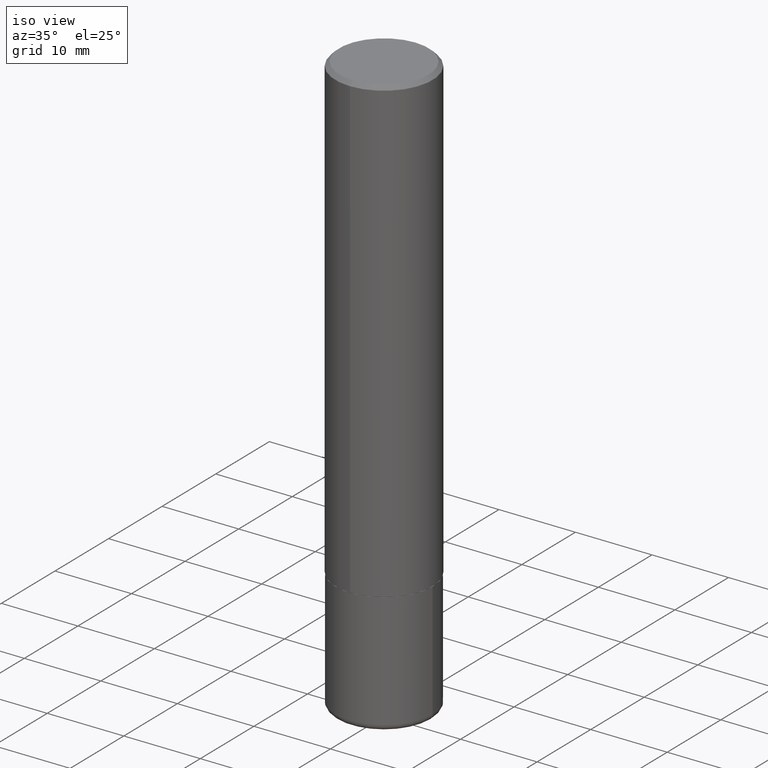
[diagram: clean part render]
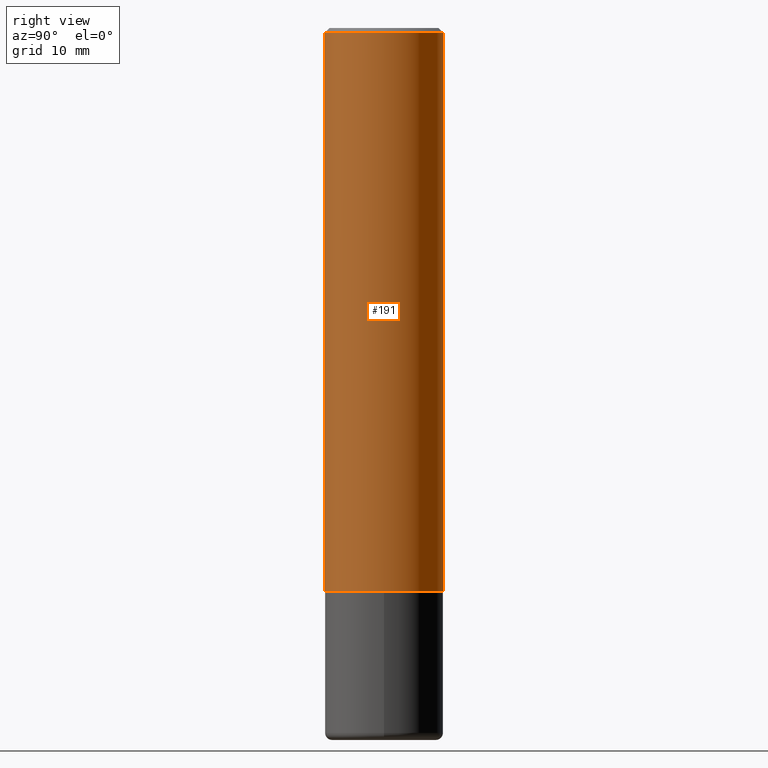
[diagram: tour spotlight — one face highlighted and labeled with its STEP entity id]
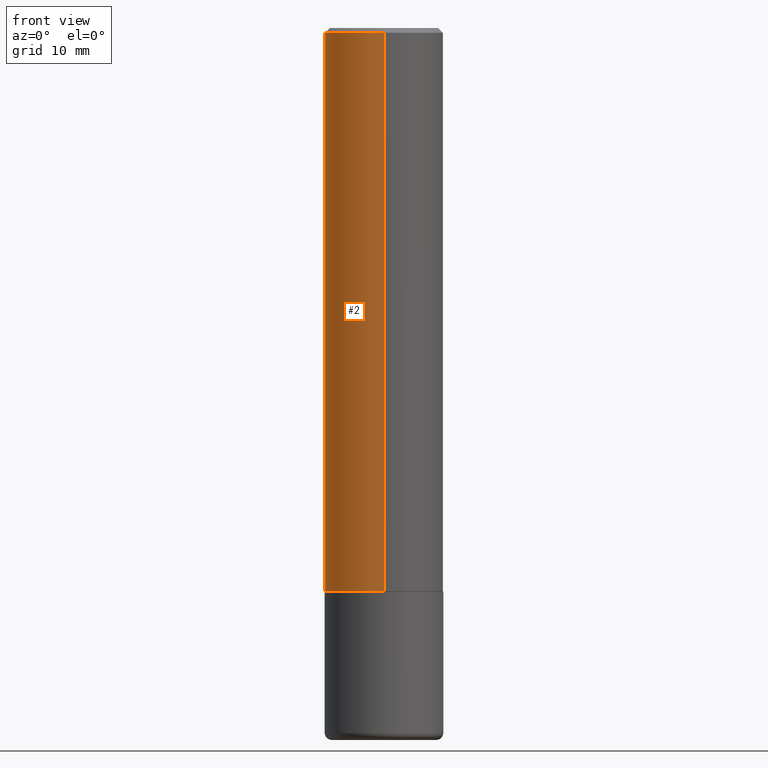
[diagram: tour spotlight — one face highlighted and labeled with its STEP entity id]
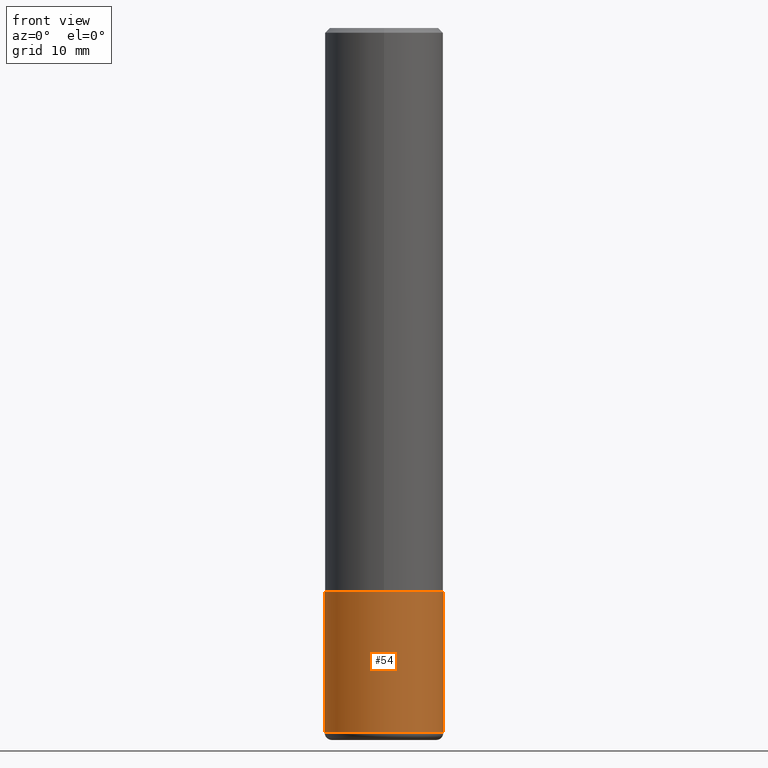
[diagram: tour spotlight — one face highlighted and labeled with its STEP entity id]
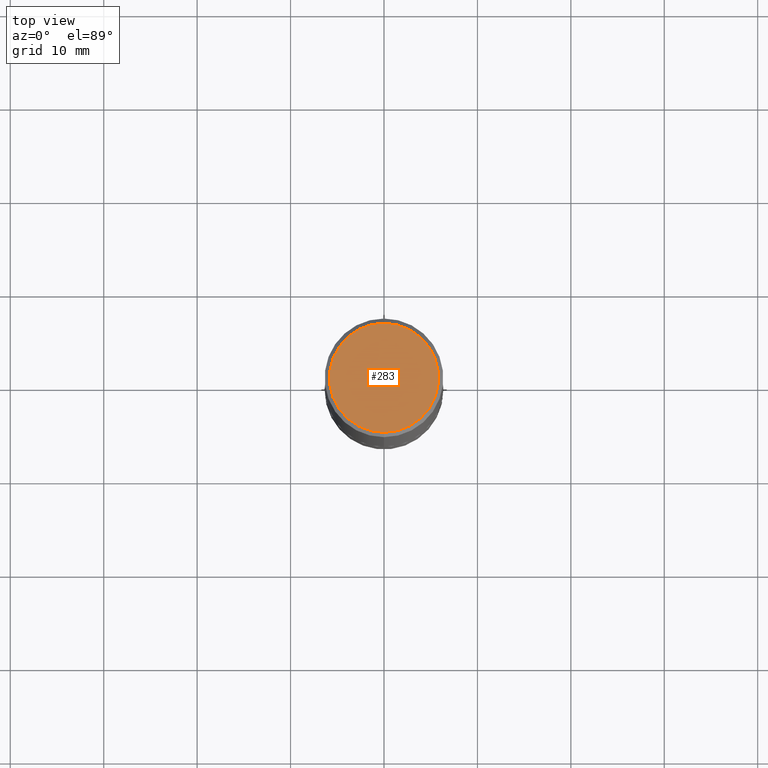
[diagram: tour spotlight — one face highlighted and labeled with its STEP entity id]
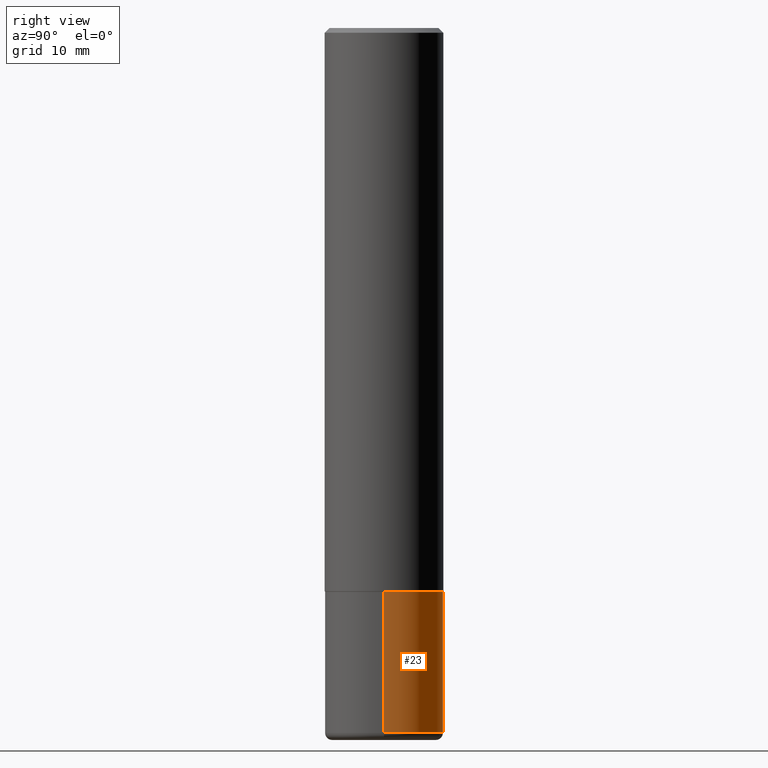
[diagram: tour spotlight — one face highlighted and labeled with its STEP entity id]
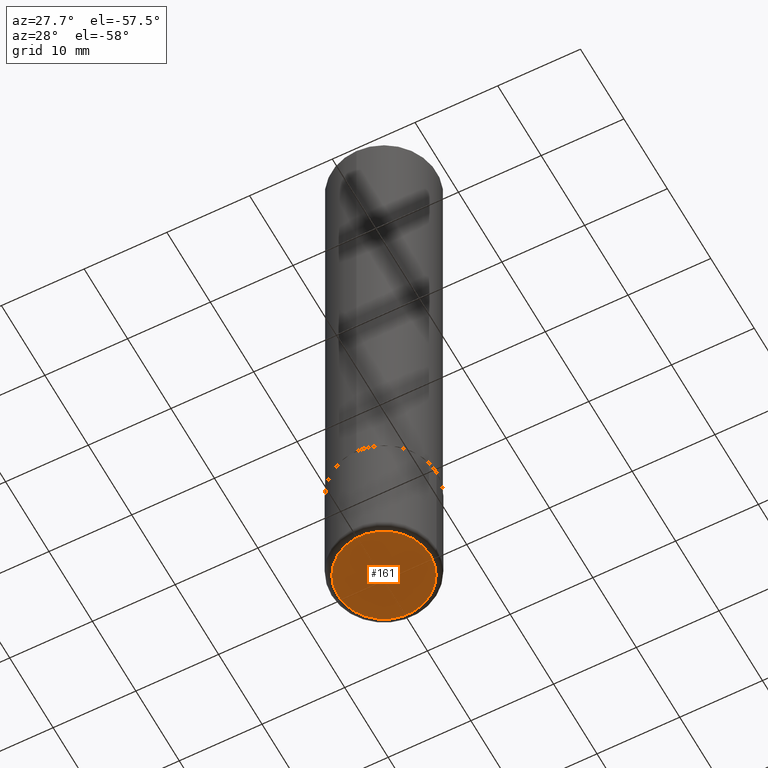
[diagram: tour spotlight — one face highlighted and labeled with its STEP entity id]
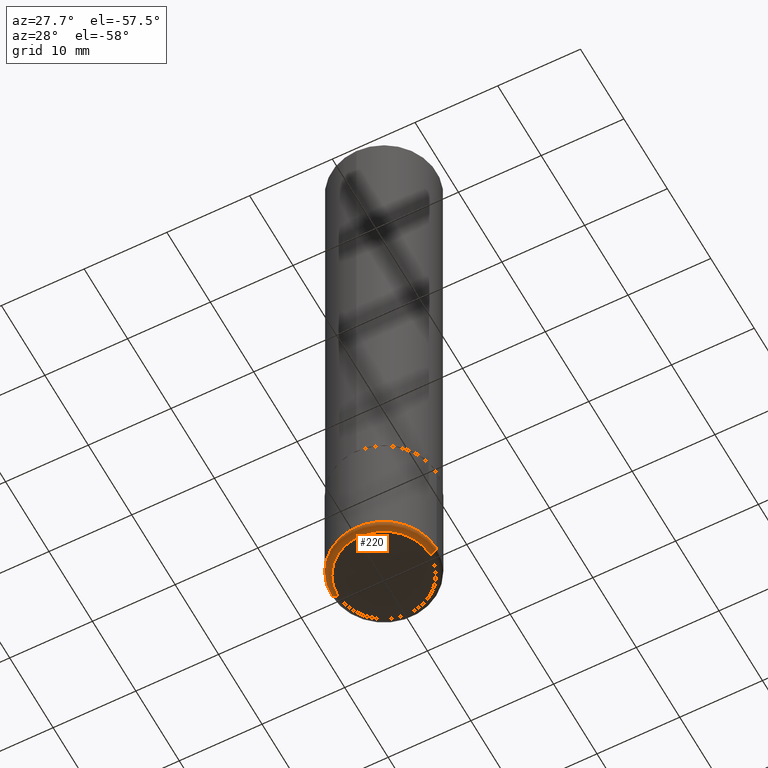
[diagram: tour spotlight — one face highlighted and labeled with its STEP entity id]
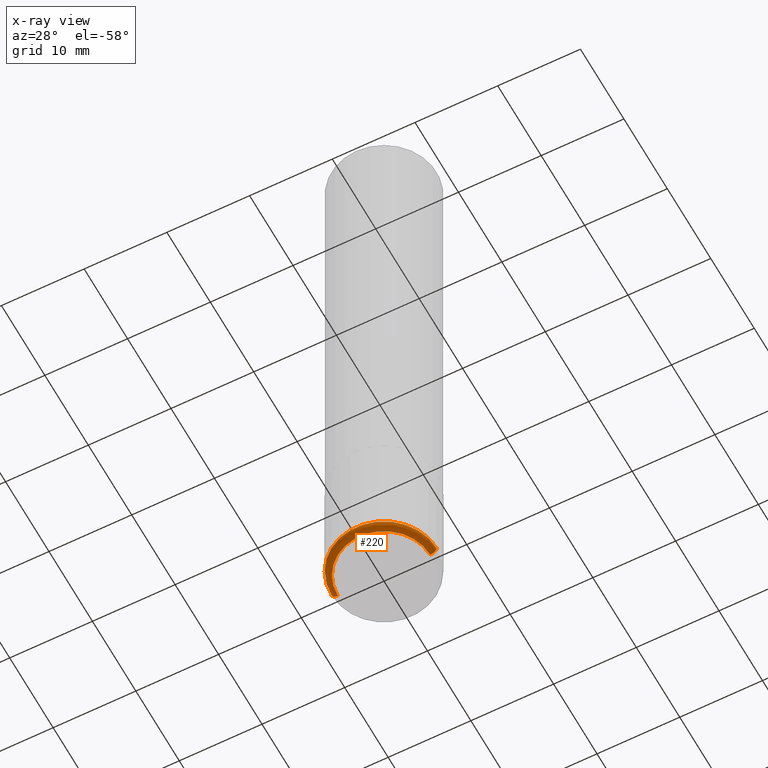
[diagram: x-ray of the same camera — body ghosted, this tour face saturated]
A machine part: a face-by-face anatomy tour. The part has 14 B-rep faces; the first image is the clean iso view, then the 7 largest visible faces are spotlighted one at a time (largest first), each with its STEP entity span.

Face 1 — right view, entity #191. In plain terms, the highlighted cylindrical surface (partial cylindrical patch) has radius 6.35 mm, axis along (-0, 0, 1).
Definition (entity closure, byte-faithful):
#4 = CARTESIAN_POINT ( 'NONE',  ( 4.890248901431403027E-31, -6.983948950949810725E-17, -0.02000000000000009409 ) ) ;
#17 = VECTOR ( 'NONE', #323, 39.37007874015748143 ) ;
#37 = DIRECTION ( 'NONE',  ( -2.445124450715689953E-29, 3.491974475474889339E-15, 1.000000000000000000 ) ) ;
#46 = DIRECTION ( 'NONE',  ( -2.445124450715689953E-29, 3.491974475474889339E-15, 1.000000000000000000 ) ) ;
#56 = VERTEX_POINT ( 'NONE', #85 ) ;
#69 = LINE ( 'NONE', #263, #17 ) ;
#84 = EDGE_CURVE ( 'NONE', #362, #56, #69, .T. ) ;
#85 = CARTESIAN_POINT ( 'NONE',  ( -1.715124499442881905E-15, -0.2500000000000000555, -0.01999999999999921979 ) ) ;
#120 = EDGE_CURVE ( 'NONE', #233, #196, #383, .T. ) ;
#139 = ORIENTED_EDGE ( 'NONE', *, *, #84, .F. ) ;
#140 = VECTOR ( 'NONE', #354, 39.37007874015748143 ) ;
#144 = ORIENTED_EDGE ( 'NONE', *, *, #120, .T. ) ;
#145 = CARTESIAN_POINT ( 'NONE',  ( 0.000000000000000000, 0.000000000000000000, 0.000000000000000000 ) ) ;
#160 = EDGE_CURVE ( 'NONE', #362, #233, #412, .T. ) ;
#163 = DIRECTION ( 'NONE',  ( -2.445124450715689953E-29, 3.491974475474889339E-15, 1.000000000000000000 ) ) ;
#164 = ORIENTED_EDGE ( 'NONE', *, *, #160, .T. ) ;
#168 = ORIENTED_EDGE ( 'NONE', *, *, #179, .F. ) ;
#179 = EDGE_CURVE ( 'NONE', #56, #196, #281, .T. ) ;
#185 = AXIS2_PLACEMENT_3D ( 'NONE', #4, #37, #341 ) ;
#191 = ADVANCED_FACE ( 'NONE', ( #418 ), #336, .T. ) ;
#196 = VERTEX_POINT ( 'NONE', #398 ) ;
#230 = CARTESIAN_POINT ( 'NONE',  ( 1.776356839400251254E-15, 0.2500000000000001110, -8.729936188687228278E-16 ) ) ;
#233 = VERTEX_POINT ( 'NONE', #248 ) ;
#243 = AXIS2_PLACEMENT_3D ( 'NONE', #292, #163, #413 ) ;
#248 = CARTESIAN_POINT ( 'NONE',  ( 1.776356839400280836E-15, 0.2499999999999919786, -2.374000000000000998 ) ) ;
#252 = CARTESIAN_POINT ( 'NONE',  ( -1.745740669421510471E-15, -0.2500000000000085487, -2.373999999999999222 ) ) ;
#263 = CARTESIAN_POINT ( 'NONE',  ( -1.745740669421567467E-15, -0.2500000000000001110, 8.729936188687228278E-16 ) ) ;
#281 = CIRCLE ( 'NONE', #185, 0.2499999999999999722 ) ;
#292 = CARTESIAN_POINT ( 'NONE',  ( 5.804725445999048016E-29, -8.289947404777387606E-15, -2.374000000000000110 ) ) ;
#299 = DIRECTION ( 'NONE',  ( -6.982962677686266711E-15, -1.000000000000000000, 3.491974475474889733E-15 ) ) ;
#300 = EDGE_LOOP ( 'NONE', ( #164, #144, #168, #139 ) ) ;
#323 = DIRECTION ( 'NONE',  ( -2.445124450715689673E-29, 3.491974475474889339E-15, 1.000000000000000000 ) ) ;
#336 = CYLINDRICAL_SURFACE ( 'NONE', #361, 0.2500000000000001110 ) ;
#341 = DIRECTION ( 'NONE',  ( -6.982962677686265922E-15, -1.000000000000000000, 3.500180241882337655E-15 ) ) ;
#354 = DIRECTION ( 'NONE',  ( -2.445124450715689673E-29, 3.491974475474889339E-15, 1.000000000000000000 ) ) ;
#361 = AXIS2_PLACEMENT_3D ( 'NONE', #145, #46, #299 ) ;
#362 = VERTEX_POINT ( 'NONE', #252 ) ;
#383 = LINE ( 'NONE', #230, #140 ) ;
#398 = CARTESIAN_POINT ( 'NONE',  ( 1.745740669421566678E-15, 0.2499999999999998890, -0.02000000000000096839 ) ) ;
#412 = CIRCLE ( 'NONE', #243, 0.2500000000000002776 ) ;
#413 = DIRECTION ( 'NONE',  ( -6.982962677686265922E-15, -1.000000000000000000, 3.278217592397112312E-15 ) ) ;
#418 = FACE_OUTER_BOUND ( 'NONE', #300, .T. ) ;

Face 2 — front view, entity #2. In plain terms, the highlighted cylindrical surface (partial cylindrical patch) has radius 6.35 mm, axis along (-0, 0, 1).
Definition (entity closure, byte-faithful):
#2 = ADVANCED_FACE ( 'NONE', ( #289 ), #16, .T. ) ;
#16 = CYLINDRICAL_SURFACE ( 'NONE', #404, 0.2500000000000001110 ) ;
#17 = VECTOR ( 'NONE', #323, 39.37007874015748143 ) ;
#18 = DIRECTION ( 'NONE',  ( -6.982962677686266711E-15, -1.000000000000000000, 3.491974475474889733E-15 ) ) ;
#20 = ORIENTED_EDGE ( 'NONE', *, *, #297, .F. ) ;
#24 = CIRCLE ( 'NONE', #134, 0.2499999999999999722 ) ;
#43 = AXIS2_PLACEMENT_3D ( 'NONE', #78, #212, #184 ) ;
#56 = VERTEX_POINT ( 'NONE', #85 ) ;
#69 = LINE ( 'NONE', #263, #17 ) ;
#78 = CARTESIAN_POINT ( 'NONE',  ( 5.804725445999048016E-29, -8.289947404777387606E-15, -2.374000000000000110 ) ) ;
#84 = EDGE_CURVE ( 'NONE', #362, #56, #69, .T. ) ;
#85 = CARTESIAN_POINT ( 'NONE',  ( -1.715124499442881905E-15, -0.2500000000000000555, -0.01999999999999921979 ) ) ;
#120 = EDGE_CURVE ( 'NONE', #233, #196, #383, .T. ) ;
#134 = AXIS2_PLACEMENT_3D ( 'NONE', #245, #150, #217 ) ;
#140 = VECTOR ( 'NONE', #354, 39.37007874015748143 ) ;
#150 = DIRECTION ( 'NONE',  ( -2.445124450715689953E-29, 3.491974475474889339E-15, 1.000000000000000000 ) ) ;
#174 = EDGE_CURVE ( 'NONE', #233, #362, #309, .T. ) ;
#181 = ORIENTED_EDGE ( 'NONE', *, *, #174, .T. ) ;
#184 = DIRECTION ( 'NONE',  ( -6.982962677686265922E-15, -1.000000000000000000, 3.278217592397112312E-15 ) ) ;
#196 = VERTEX_POINT ( 'NONE', #398 ) ;
#212 = DIRECTION ( 'NONE',  ( -2.445124450715689953E-29, 3.491974475474889339E-15, 1.000000000000000000 ) ) ;
#217 = DIRECTION ( 'NONE',  ( -6.982962677686265922E-15, -1.000000000000000000, 3.500180241882337655E-15 ) ) ;
#230 = CARTESIAN_POINT ( 'NONE',  ( 1.776356839400251254E-15, 0.2500000000000001110, -8.729936188687228278E-16 ) ) ;
#233 = VERTEX_POINT ( 'NONE', #248 ) ;
#245 = CARTESIAN_POINT ( 'NONE',  ( 4.890248901431403027E-31, -6.983948950949810725E-17, -0.02000000000000009409 ) ) ;
#248 = CARTESIAN_POINT ( 'NONE',  ( 1.776356839400280836E-15, 0.2499999999999919786, -2.374000000000000998 ) ) ;
#252 = CARTESIAN_POINT ( 'NONE',  ( -1.745740669421510471E-15, -0.2500000000000085487, -2.373999999999999222 ) ) ;
#259 = CARTESIAN_POINT ( 'NONE',  ( 0.000000000000000000, 0.000000000000000000, 0.000000000000000000 ) ) ;
#263 = CARTESIAN_POINT ( 'NONE',  ( -1.745740669421567467E-15, -0.2500000000000001110, 8.729936188687228278E-16 ) ) ;
#289 = FACE_OUTER_BOUND ( 'NONE', #332, .T. ) ;
#297 = EDGE_CURVE ( 'NONE', #196, #56, #24, .T. ) ;
#309 = CIRCLE ( 'NONE', #43, 0.2500000000000002776 ) ;
#316 = DIRECTION ( 'NONE',  ( -2.445124450715689953E-29, 3.491974475474889339E-15, 1.000000000000000000 ) ) ;
#323 = DIRECTION ( 'NONE',  ( -2.445124450715689673E-29, 3.491974475474889339E-15, 1.000000000000000000 ) ) ;
#332 = EDGE_LOOP ( 'NONE', ( #365, #181, #396, #20 ) ) ;
#354 = DIRECTION ( 'NONE',  ( -2.445124450715689673E-29, 3.491974475474889339E-15, 1.000000000000000000 ) ) ;
#362 = VERTEX_POINT ( 'NONE', #252 ) ;
#365 = ORIENTED_EDGE ( 'NONE', *, *, #120, .F. ) ;
#383 = LINE ( 'NONE', #230, #140 ) ;
#396 = ORIENTED_EDGE ( 'NONE', *, *, #84, .T. ) ;
#398 = CARTESIAN_POINT ( 'NONE',  ( 1.745740669421566678E-15, 0.2499999999999998890, -0.02000000000000096839 ) ) ;
#404 = AXIS2_PLACEMENT_3D ( 'NONE', #259, #316, #18 ) ;

Face 3 — front view, entity #54. In plain terms, the highlighted cylindrical surface (partial cylindrical patch) has radius 6.35 mm, axis along (-0, 0, 1).
Definition (entity closure, byte-faithful):
#30 = FACE_OUTER_BOUND ( 'NONE', #275, .T. ) ;
#35 = VERTEX_POINT ( 'NONE', #415 ) ;
#39 = DIRECTION ( 'NONE',  ( 1.000000000000000000, -6.982962677686266711E-15, 0.000000000000000000 ) ) ;
#41 = CARTESIAN_POINT ( 'NONE',  ( 5.807988414689700538E-29, -8.292268179752471696E-15, -2.375000000000000000 ) ) ;
#48 = CARTESIAN_POINT ( 'NONE',  ( 0.000000000000000000, 0.000000000000000000, 0.000000000000000000 ) ) ;
#50 = EDGE_CURVE ( 'NONE', #91, #228, #295, .T. ) ;
#54 = ADVANCED_FACE ( 'NONE', ( #30 ), #417, .T. ) ;
#57 = EDGE_CURVE ( 'NONE', #35, #126, #250, .T. ) ;
#66 = CARTESIAN_POINT ( 'NONE',  ( -0.2500000000000000000, -7.554627038658056086E-15, -2.375000000000000000 ) ) ;
#71 = DIRECTION ( 'NONE',  ( -2.445468806185136877E-29, 3.491481338843145188E-15, 1.000000000000000000 ) ) ;
#80 = DIRECTION ( 'NONE',  ( 1.000000000000000000, -6.982962677686270655E-15, 0.000000000000000000 ) ) ;
#81 = ORIENTED_EDGE ( 'NONE', *, *, #57, .F. ) ;
#82 = DIRECTION ( 'NONE',  ( -2.445468806185136877E-29, 3.491481338843145188E-15, 1.000000000000000000 ) ) ;
#88 = VECTOR ( 'NONE', #71, 39.37007874015748143 ) ;
#91 = VERTEX_POINT ( 'NONE', #410 ) ;
#101 = DIRECTION ( 'NONE',  ( 1.000000000000000000, -6.982962677686266711E-15, 4.876176775795935793E-29 ) ) ;
#117 = AXIS2_PLACEMENT_3D ( 'NONE', #176, #246, #80 ) ;
#118 = CARTESIAN_POINT ( 'NONE',  ( -0.2500000000000000000, 1.776356839400250465E-15, -1.229733772563726445E-29 ) ) ;
#126 = VERTEX_POINT ( 'NONE', #66 ) ;
#176 = CARTESIAN_POINT ( 'NONE',  ( 7.263042354369856275E-29, -1.036969957636414298E-14, -2.970000000000000195 ) ) ;
#192 = AXIS2_PLACEMENT_3D ( 'NONE', #48, #318, #101 ) ;
#198 = ORIENTED_EDGE ( 'NONE', *, *, #244, .T. ) ;
#203 = ORIENTED_EDGE ( 'NONE', *, *, #50, .T. ) ;
#224 = AXIS2_PLACEMENT_3D ( 'NONE', #41, #338, #39 ) ;
#228 = VERTEX_POINT ( 'NONE', #334 ) ;
#234 = CIRCLE ( 'NONE', #224, 0.2500000000000000000 ) ;
#240 = ORIENTED_EDGE ( 'NONE', *, *, #257, .F. ) ;
#244 = EDGE_CURVE ( 'NONE', #35, #91, #285, .T. ) ;
#246 = DIRECTION ( 'NONE',  ( -2.445468806185136597E-29, 3.491481338843145583E-15, 1.000000000000000000 ) ) ;
#250 = LINE ( 'NONE', #118, #379 ) ;
#257 = EDGE_CURVE ( 'NONE', #126, #228, #234, .T. ) ;
#275 = EDGE_LOOP ( 'NONE', ( #81, #198, #203, #240 ) ) ;
#285 = CIRCLE ( 'NONE', #117, 0.2500000000000000000 ) ;
#295 = LINE ( 'NONE', #359, #88 ) ;
#318 = DIRECTION ( 'NONE',  ( -2.445468806185136597E-29, 3.491481338843145583E-15, 1.000000000000000000 ) ) ;
#334 = CARTESIAN_POINT ( 'NONE',  ( 0.2500000000000000000, -1.003800884917403837E-14, -2.375000000000000000 ) ) ;
#338 = DIRECTION ( 'NONE',  ( -2.445468806185136597E-29, 3.491481338843145583E-15, 1.000000000000000000 ) ) ;
#359 = CARTESIAN_POINT ( 'NONE',  ( 0.2500000000000000000, -1.745740669421566678E-15, 1.219044193948983948E-29 ) ) ;
#379 = VECTOR ( 'NONE', #82, 39.37007874015748143 ) ;
#410 = CARTESIAN_POINT ( 'NONE',  ( 0.2500000000000001110, -1.211544024578571282E-14, -2.970000000000000195 ) ) ;
#415 = CARTESIAN_POINT ( 'NONE',  ( -0.2500000000000001110, -8.593342736963890941E-15, -2.970000000000000195 ) ) ;
#417 = CYLINDRICAL_SURFACE ( 'NONE', #192, 0.2500000000000000000 ) ;

Face 4 — top view, entity #283. In plain terms, the highlighted planar face has unit normal (0, -0, -1).
Definition (entity closure, byte-faithful):
#3 = CARTESIAN_POINT ( 'NONE',  ( 1.606081415867843039E-15, 0.2300000000000002320, -9.503610995550391843E-16 ) ) ;
#9 = DIRECTION ( 'NONE',  ( -2.445124450715689953E-29, 3.491974475474889339E-15, 1.000000000000000000 ) ) ;
#53 = AXIS2_PLACEMENT_3D ( 'NONE', #111, #9, #401 ) ;
#83 = PLANE ( 'NONE',  #258 ) ;
#111 = CARTESIAN_POINT ( 'NONE',  ( 7.198787242831196614E-45, -1.028085965071548040E-30, -2.944139403916273006E-16 ) ) ;
#119 = FACE_OUTER_BOUND ( 'NONE', #231, .T. ) ;
#124 = CARTESIAN_POINT ( 'NONE',  ( 1.675911042644704760E-15, 0.2300000000000002320, -1.097568069750852835E-15 ) ) ;
#216 = CIRCLE ( 'NONE', #53, 0.2300000000000002320 ) ;
#229 = EDGE_CURVE ( 'NONE', #355, #335, #216, .T. ) ;
#231 = EDGE_LOOP ( 'NONE', ( #377, #304 ) ) ;
#239 = DIRECTION ( 'NONE',  ( -6.982962677686266711E-15, -1.000000000000000000, 3.491974475474889733E-15 ) ) ;
#254 = EDGE_CURVE ( 'NONE', #335, #355, #387, .T. ) ;
#258 = AXIS2_PLACEMENT_3D ( 'NONE', #3, #271, #331 ) ;
#270 = DIRECTION ( 'NONE',  ( -2.445124450715689953E-29, 3.491974475474889339E-15, 1.000000000000000000 ) ) ;
#271 = DIRECTION ( 'NONE',  ( 2.445124450715689673E-29, -3.491974475474889339E-15, -1.000000000000000000 ) ) ;
#274 = CARTESIAN_POINT ( 'NONE',  ( 7.198787242831196614E-45, -1.028085965071548040E-30, -2.944139403916273006E-16 ) ) ;
#283 = ADVANCED_FACE ( 'NONE', ( #119 ), #83, .F. ) ;
#304 = ORIENTED_EDGE ( 'NONE', *, *, #254, .T. ) ;
#331 = DIRECTION ( 'NONE',  ( 6.982962677686265922E-15, 1.000000000000000000, -3.491974475474889339E-15 ) ) ;
#335 = VERTEX_POINT ( 'NONE', #370 ) ;
#355 = VERTEX_POINT ( 'NONE', #124 ) ;
#370 = CARTESIAN_POINT ( 'NONE',  ( -1.646519519465167954E-15, -0.2300000000000002320, 5.087401889675979376E-16 ) ) ;
#377 = ORIENTED_EDGE ( 'NONE', *, *, #229, .T. ) ;
#387 = CIRCLE ( 'NONE', #406, 0.2300000000000002320 ) ;
#401 = DIRECTION ( 'NONE',  ( -6.982962677686266711E-15, -1.000000000000000000, 3.491974475474889733E-15 ) ) ;
#406 = AXIS2_PLACEMENT_3D ( 'NONE', #274, #270, #239 ) ;

Face 5 — right view, entity #23. In plain terms, the highlighted cylindrical surface (partial cylindrical patch) has radius 6.35 mm, axis along (-0, 0, 1).
Definition (entity closure, byte-faithful):
#12 = EDGE_CURVE ( 'NONE', #91, #35, #133, .T. ) ;
#23 = ADVANCED_FACE ( 'NONE', ( #293 ), #356, .T. ) ;
#35 = VERTEX_POINT ( 'NONE', #415 ) ;
#50 = EDGE_CURVE ( 'NONE', #91, #228, #295, .T. ) ;
#57 = EDGE_CURVE ( 'NONE', #35, #126, #250, .T. ) ;
#66 = CARTESIAN_POINT ( 'NONE',  ( -0.2500000000000000000, -7.554627038658056086E-15, -2.375000000000000000 ) ) ;
#67 = ORIENTED_EDGE ( 'NONE', *, *, #50, .F. ) ;
#71 = DIRECTION ( 'NONE',  ( -2.445468806185136877E-29, 3.491481338843145188E-15, 1.000000000000000000 ) ) ;
#82 = DIRECTION ( 'NONE',  ( -2.445468806185136877E-29, 3.491481338843145188E-15, 1.000000000000000000 ) ) ;
#88 = VECTOR ( 'NONE', #71, 39.37007874015748143 ) ;
#91 = VERTEX_POINT ( 'NONE', #410 ) ;
#110 = CIRCLE ( 'NONE', #385, 0.2500000000000000000 ) ;
#114 = DIRECTION ( 'NONE',  ( -2.445468806185136597E-29, 3.491481338843145583E-15, 1.000000000000000000 ) ) ;
#118 = CARTESIAN_POINT ( 'NONE',  ( -0.2500000000000000000, 1.776356839400250465E-15, -1.229733772563726445E-29 ) ) ;
#126 = VERTEX_POINT ( 'NONE', #66 ) ;
#133 = CIRCLE ( 'NONE', #148, 0.2500000000000000000 ) ;
#148 = AXIS2_PLACEMENT_3D ( 'NONE', #345, #312, #232 ) ;
#172 = DIRECTION ( 'NONE',  ( 1.000000000000000000, -6.982962677686266711E-15, 4.876176775795935793E-29 ) ) ;
#213 = ORIENTED_EDGE ( 'NONE', *, *, #12, .T. ) ;
#215 = EDGE_LOOP ( 'NONE', ( #213, #308, #321, #67 ) ) ;
#228 = VERTEX_POINT ( 'NONE', #334 ) ;
#232 = DIRECTION ( 'NONE',  ( 1.000000000000000000, -6.982962677686270655E-15, 0.000000000000000000 ) ) ;
#250 = LINE ( 'NONE', #118, #379 ) ;
#277 = DIRECTION ( 'NONE',  ( 1.000000000000000000, -6.982962677686266711E-15, 0.000000000000000000 ) ) ;
#280 = EDGE_CURVE ( 'NONE', #228, #126, #110, .T. ) ;
#293 = FACE_OUTER_BOUND ( 'NONE', #215, .T. ) ;
#295 = LINE ( 'NONE', #359, #88 ) ;
#303 = CARTESIAN_POINT ( 'NONE',  ( 5.807988414689700538E-29, -8.292268179752471696E-15, -2.375000000000000000 ) ) ;
#308 = ORIENTED_EDGE ( 'NONE', *, *, #57, .T. ) ;
#312 = DIRECTION ( 'NONE',  ( -2.445468806185136597E-29, 3.491481338843145583E-15, 1.000000000000000000 ) ) ;
#321 = ORIENTED_EDGE ( 'NONE', *, *, #280, .F. ) ;
#324 = DIRECTION ( 'NONE',  ( -2.445468806185136597E-29, 3.491481338843145583E-15, 1.000000000000000000 ) ) ;
#325 = AXIS2_PLACEMENT_3D ( 'NONE', #414, #324, #172 ) ;
#334 = CARTESIAN_POINT ( 'NONE',  ( 0.2500000000000000000, -1.003800884917403837E-14, -2.375000000000000000 ) ) ;
#345 = CARTESIAN_POINT ( 'NONE',  ( 7.263042354369856275E-29, -1.036969957636414298E-14, -2.970000000000000195 ) ) ;
#356 = CYLINDRICAL_SURFACE ( 'NONE', #325, 0.2500000000000000000 ) ;
#359 = CARTESIAN_POINT ( 'NONE',  ( 0.2500000000000000000, -1.745740669421566678E-15, 1.219044193948983948E-29 ) ) ;
#379 = VECTOR ( 'NONE', #82, 39.37007874015748143 ) ;
#385 = AXIS2_PLACEMENT_3D ( 'NONE', #303, #114, #277 ) ;
#410 = CARTESIAN_POINT ( 'NONE',  ( 0.2500000000000001110, -1.211544024578571282E-14, -2.970000000000000195 ) ) ;
#414 = CARTESIAN_POINT ( 'NONE',  ( 0.000000000000000000, 0.000000000000000000, 0.000000000000000000 ) ) ;
#415 = CARTESIAN_POINT ( 'NONE',  ( -0.2500000000000001110, -8.593342736963890941E-15, -2.970000000000000195 ) ) ;

Face 6 — auxiliary view, entity #161. In plain terms, the highlighted planar face has unit normal (0, -0, -1).
Definition (entity closure, byte-faithful):
#6 = ORIENTED_EDGE ( 'NONE', *, *, #399, .F. ) ;
#21 = DIRECTION ( 'NONE',  ( -2.445468806185136597E-29, 3.491481338843145583E-15, 1.000000000000000000 ) ) ;
#36 = AXIS2_PLACEMENT_3D ( 'NONE', #65, #131, #261 ) ;
#63 = EDGE_CURVE ( 'NONE', #79, #337, #153, .T. ) ;
#65 = CARTESIAN_POINT ( 'NONE',  ( 2.133753896500054563E-29, -1.792493854470469860E-14, -3.000000000000000888 ) ) ;
#70 = CIRCLE ( 'NONE', #272, 0.2200000000000000011 ) ;
#79 = VERTEX_POINT ( 'NONE', #388 ) ;
#121 = CARTESIAN_POINT ( 'NONE',  ( -0.2200000000000000011, -8.752296367410555115E-15, -3.000000000000000888 ) ) ;
#131 = DIRECTION ( 'NONE',  ( 2.438088387897960049E-29, -3.491481338843145188E-15, -1.000000000000000000 ) ) ;
#153 = CIRCLE ( 'NONE', #262, 0.2200000000000000011 ) ;
#161 = ADVANCED_FACE ( 'NONE', ( #197 ), #291, .T. ) ;
#166 = DIRECTION ( 'NONE',  ( 1.000000000000000000, -6.982962677686270655E-15, 0.000000000000000000 ) ) ;
#182 = CARTESIAN_POINT ( 'NONE',  ( 7.336406418555412032E-29, -1.047444401652943951E-14, -3.000000000000000888 ) ) ;
#187 = DIRECTION ( 'NONE',  ( -2.445468806185136597E-29, 3.491481338843145583E-15, 1.000000000000000000 ) ) ;
#195 = DIRECTION ( 'NONE',  ( 1.000000000000000000, -6.982962677686270655E-15, 0.000000000000000000 ) ) ;
#197 = FACE_OUTER_BOUND ( 'NONE', #209, .T. ) ;
#199 = ORIENTED_EDGE ( 'NONE', *, *, #63, .F. ) ;
#209 = EDGE_LOOP ( 'NONE', ( #199, #6 ) ) ;
#261 = DIRECTION ( 'NONE',  ( -1.000000000000000000, 6.982962677686265922E-15, -4.876176775795935793E-29 ) ) ;
#262 = AXIS2_PLACEMENT_3D ( 'NONE', #182, #187, #195 ) ;
#272 = AXIS2_PLACEMENT_3D ( 'NONE', #320, #21, #166 ) ;
#291 = PLANE ( 'NONE',  #36 ) ;
#320 = CARTESIAN_POINT ( 'NONE',  ( 7.336406418555412032E-29, -1.047444401652943951E-14, -3.000000000000000888 ) ) ;
#337 = VERTEX_POINT ( 'NONE', #121 ) ;
#388 = CARTESIAN_POINT ( 'NONE',  ( 0.2200000000000000011, -1.201069580562041945E-14, -3.000000000000000888 ) ) ;
#399 = EDGE_CURVE ( 'NONE', #337, #79, #70, .T. ) ;

Face 7 — auxiliary view, entity #220. An x-ray twin of the same camera follows (body ghosted, this face saturated) — the face is partly hidden behind the body. In plain terms, the highlighted toroidal blend (fillet) surface has major radius 5.588 mm and minor (blend) radius 0.762 mm.
Definition (entity closure, byte-faithful):
#21 = DIRECTION ( 'NONE',  ( -2.445468806185136597E-29, 3.491481338843145583E-15, 1.000000000000000000 ) ) ;
#35 = VERTEX_POINT ( 'NONE', #415 ) ;
#44 = TOROIDAL_SURFACE ( 'NONE', #288, 0.2200000000000000011, 0.03000000000000024175 ) ;
#59 = DIRECTION ( 'NONE',  ( -1.000000000000000000, 7.105427357600994759E-15, 0.000000000000000000 ) ) ;
#70 = CIRCLE ( 'NONE', #272, 0.2200000000000000011 ) ;
#72 = EDGE_LOOP ( 'NONE', ( #348, #115, #247, #106 ) ) ;
#79 = VERTEX_POINT ( 'NONE', #388 ) ;
#80 = DIRECTION ( 'NONE',  ( 1.000000000000000000, -6.982962677686270655E-15, 0.000000000000000000 ) ) ;
#86 = CARTESIAN_POINT ( 'NONE',  ( 7.263042354369856275E-29, -1.036969957636414298E-14, -2.970000000000000195 ) ) ;
#91 = VERTEX_POINT ( 'NONE', #410 ) ;
#106 = ORIENTED_EDGE ( 'NONE', *, *, #244, .F. ) ;
#108 = AXIS2_PLACEMENT_3D ( 'NONE', #180, #147, #307 ) ;
#115 = ORIENTED_EDGE ( 'NONE', *, *, #399, .T. ) ;
#117 = AXIS2_PLACEMENT_3D ( 'NONE', #176, #246, #80 ) ;
#121 = CARTESIAN_POINT ( 'NONE',  ( -0.2200000000000000011, -8.752296367410555115E-15, -3.000000000000000888 ) ) ;
#141 = DIRECTION ( 'NONE',  ( -2.445468806185136597E-29, 3.491481338843145583E-15, 1.000000000000000000 ) ) ;
#147 = DIRECTION ( 'NONE',  ( -6.982962677686266711E-15, -1.000000000000000000, 3.491481338843145583E-15 ) ) ;
#159 = AXIS2_PLACEMENT_3D ( 'NONE', #227, #210, #59 ) ;
#166 = DIRECTION ( 'NONE',  ( 1.000000000000000000, -6.982962677686270655E-15, 0.000000000000000000 ) ) ;
#176 = CARTESIAN_POINT ( 'NONE',  ( 7.263042354369856275E-29, -1.036969957636414298E-14, -2.970000000000000195 ) ) ;
#180 = CARTESIAN_POINT ( 'NONE',  ( 0.2200000000000000011, -1.190595136545512292E-14, -2.970000000000000195 ) ) ;
#183 = EDGE_CURVE ( 'NONE', #79, #91, #287, .T. ) ;
#208 = DIRECTION ( 'NONE',  ( 1.000000000000000000, -6.982962677686262766E-15, 4.883557194083111780E-29 ) ) ;
#210 = DIRECTION ( 'NONE',  ( 7.105427357601001859E-15, 1.000000000000000000, -3.491481338843145583E-15 ) ) ;
#214 = FACE_OUTER_BOUND ( 'NONE', #72, .T. ) ;
#220 = ADVANCED_FACE ( 'NONE', ( #214 ), #44, .T. ) ;
#227 = CARTESIAN_POINT ( 'NONE',  ( -0.2200000000000000011, -8.806505557691921187E-15, -2.970000000000000195 ) ) ;
#244 = EDGE_CURVE ( 'NONE', #35, #91, #285, .T. ) ;
#246 = DIRECTION ( 'NONE',  ( -2.445468806185136597E-29, 3.491481338843145583E-15, 1.000000000000000000 ) ) ;
#247 = ORIENTED_EDGE ( 'NONE', *, *, #183, .T. ) ;
#272 = AXIS2_PLACEMENT_3D ( 'NONE', #320, #21, #166 ) ;
#285 = CIRCLE ( 'NONE', #117, 0.2500000000000000000 ) ;
#287 = CIRCLE ( 'NONE', #108, 0.03000000000000025910 ) ;
#288 = AXIS2_PLACEMENT_3D ( 'NONE', #86, #141, #208 ) ;
#307 = DIRECTION ( 'NONE',  ( 1.000000000000000000, -6.982962677686273021E-15, 0.000000000000000000 ) ) ;
#320 = CARTESIAN_POINT ( 'NONE',  ( 7.336406418555412032E-29, -1.047444401652943951E-14, -3.000000000000000888 ) ) ;
#337 = VERTEX_POINT ( 'NONE', #121 ) ;
#348 = ORIENTED_EDGE ( 'NONE', *, *, #371, .F. ) ;
#371 = EDGE_CURVE ( 'NONE', #337, #35, #389, .T. ) ;
#388 = CARTESIAN_POINT ( 'NONE',  ( 0.2200000000000000011, -1.201069580562041945E-14, -3.000000000000000888 ) ) ;
#389 = CIRCLE ( 'NONE', #159, 0.03000000000000025910 ) ;
#399 = EDGE_CURVE ( 'NONE', #337, #79, #70, .T. ) ;
#410 = CARTESIAN_POINT ( 'NONE',  ( 0.2500000000000001110, -1.211544024578571282E-14, -2.970000000000000195 ) ) ;
#415 = CARTESIAN_POINT ( 'NONE',  ( -0.2500000000000001110, -8.593342736963890941E-15, -2.970000000000000195 ) ) ;